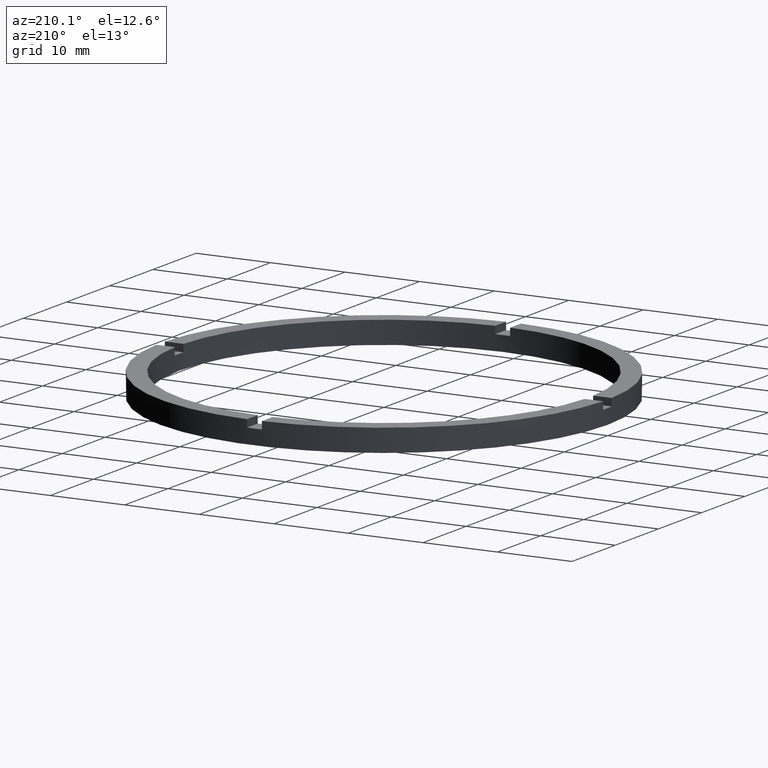
[diagram: clean part render]
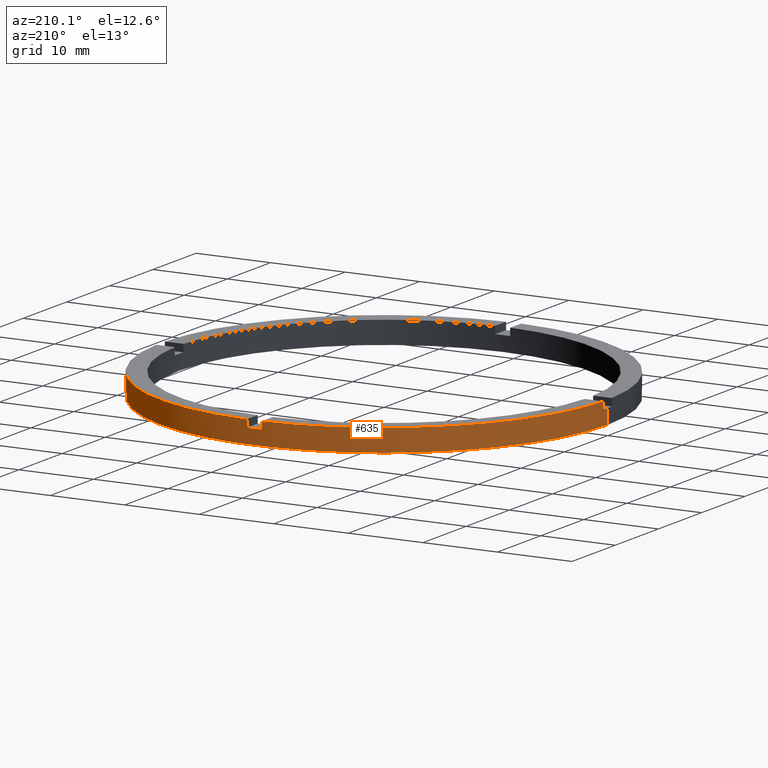
[diagram: same view with one face highlighted and labeled with its STEP entity id]
A machine part, auxiliary view. The second image highlights one B-rep face of the part: STEP entity #635.
In plain terms, the highlighted cylindrical surface (partial cylindrical patch) has radius 30 mm, axis along (-0, -0, -1).
Its self-contained STEP definition (entity closure, byte-faithful):
#4 = DIRECTION ( 'NONE',  ( 0.000000000000000000, 0.000000000000000000, 1.000000000000000000 ) ) ;
#5 = DIRECTION ( 'NONE',  ( 0.000000000000000000, 0.000000000000000000, 1.000000000000000000 ) ) ;
#11 = EDGE_CURVE ( 'NONE', #430, #458, #204, .T. ) ;
#16 = DIRECTION ( 'NONE',  ( -0.000000000000000000, -0.000000000000000000, -1.000000000000000000 ) ) ;
#20 = EDGE_CURVE ( 'NONE', #464, #458, #719, .T. ) ;
#21 = CARTESIAN_POINT ( 'NONE',  ( -1.000000000000027089, 29.98332870112989568, 2.000000000000000000 ) ) ;
#42 = VECTOR ( 'NONE', #16, 1000.000000000000000 ) ;
#47 = DIRECTION ( 'NONE',  ( 1.000000000000000000, 0.000000000000000000, 0.000000000000000000 ) ) ;
#65 = DIRECTION ( 'NONE',  ( 0.000000000000000000, 0.000000000000000000, 1.000000000000000000 ) ) ;
#67 = DIRECTION ( 'NONE',  ( -0.000000000000000000, -0.000000000000000000, -1.000000000000000000 ) ) ;
#74 = CARTESIAN_POINT ( 'NONE',  ( 30.00000000000000000, 3.673940397442059178E-15, 3.000000000000000000 ) ) ;
#78 = LINE ( 'NONE', #294, #586 ) ;
#105 = CARTESIAN_POINT ( 'NONE',  ( -30.00000000000000000, 0.000000000000000000, 3.000000000000000000 ) ) ;
#109 = EDGE_CURVE ( 'NONE', #257, #701, #548, .T. ) ;
#111 = CARTESIAN_POINT ( 'NONE',  ( 30.00000000000000000, 3.673940397442059178E-15, 0.000000000000000000 ) ) ;
#113 = VERTEX_POINT ( 'NONE', #201 ) ;
#117 = DIRECTION ( 'NONE',  ( -0.000000000000000000, -0.000000000000000000, -1.000000000000000000 ) ) ;
#120 = ORIENTED_EDGE ( 'NONE', *, *, #290, .T. ) ;
#121 = ORIENTED_EDGE ( 'NONE', *, *, #647, .T. ) ;
#123 = DIRECTION ( 'NONE',  ( 1.000000000000000000, 0.000000000000000000, 0.000000000000000000 ) ) ;
#129 = DIRECTION ( 'NONE',  ( -0.000000000000000000, -0.000000000000000000, -1.000000000000000000 ) ) ;
#134 = CARTESIAN_POINT ( 'NONE',  ( 30.00000000000000000, 3.673940397442059178E-15, 2.000000000000000000 ) ) ;
#151 = CARTESIAN_POINT ( 'NONE',  ( 0.000000000000000000, 0.000000000000000000, 2.000000000000000000 ) ) ;
#171 = DIRECTION ( 'NONE',  ( 0.000000000000000000, -0.000000000000000000, 1.000000000000000000 ) ) ;
#172 = CARTESIAN_POINT ( 'NONE',  ( -29.98332870112989923, 0.9999999999999718003, 3.000000000000000000 ) ) ;
#178 = VERTEX_POINT ( 'NONE', #437 ) ;
#180 = DIRECTION ( 'NONE',  ( 1.000000000000000000, 0.000000000000000000, 0.000000000000000000 ) ) ;
#189 = CIRCLE ( 'NONE', #414, 30.00000000000000000 ) ;
#201 = CARTESIAN_POINT ( 'NONE',  ( -30.00000000000000000, 0.000000000000000000, 2.000000000000000000 ) ) ;
#204 = LINE ( 'NONE', #577, #467 ) ;
#236 = CARTESIAN_POINT ( 'NONE',  ( 0.000000000000000000, 0.000000000000000000, 3.000000000000000000 ) ) ;
#257 = VERTEX_POINT ( 'NONE', #468 ) ;
#261 = ORIENTED_EDGE ( 'NONE', *, *, #481, .F. ) ;
#262 = DIRECTION ( 'NONE',  ( 1.000000000000000000, 0.000000000000000000, 0.000000000000000000 ) ) ;
#264 = CARTESIAN_POINT ( 'NONE',  ( -1.000000000000027089, 29.98332870112989568, 3.000000000000000000 ) ) ;
#272 = EDGE_CURVE ( 'NONE', #178, #113, #301, .T. ) ;
#273 = CARTESIAN_POINT ( 'NONE',  ( -30.00000000000000000, 0.000000000000000000, 0.000000000000000000 ) ) ;
#274 = CARTESIAN_POINT ( 'NONE',  ( 29.98332870112990278, 0.9999999999998439026, 3.000000000000000000 ) ) ;
#282 = VECTOR ( 'NONE', #65, 1000.000000000000000 ) ;
#283 = DIRECTION ( 'NONE',  ( 1.000000000000000000, 0.000000000000000000, 0.000000000000000000 ) ) ;
#290 = EDGE_CURVE ( 'NONE', #464, #509, #557, .T. ) ;
#294 = CARTESIAN_POINT ( 'NONE',  ( -29.98332870112989923, 0.9999999999999718003, 3.000000000000000000 ) ) ;
#301 = CIRCLE ( 'NONE', #588, 30.00000000000000000 ) ;
#302 = AXIS2_PLACEMENT_3D ( 'NONE', #782, #4, #47 ) ;
#303 = EDGE_CURVE ( 'NONE', #761, #504, #189, .T. ) ;
#308 = DIRECTION ( 'NONE',  ( 0.000000000000000000, -0.000000000000000000, 1.000000000000000000 ) ) ;
#336 = VECTOR ( 'NONE', #129, 1000.000000000000000 ) ;
#342 = EDGE_CURVE ( 'NONE', #257, #431, #378, .T. ) ;
#347 = DIRECTION ( 'NONE',  ( -0.000000000000000000, -0.000000000000000000, -1.000000000000000000 ) ) ;
#353 = DIRECTION ( 'NONE',  ( 0.000000000000000000, 0.000000000000000000, 1.000000000000000000 ) ) ;
#365 = CARTESIAN_POINT ( 'NONE',  ( 0.000000000000000000, 0.000000000000000000, 2.000000000000000000 ) ) ;
#378 = CIRCLE ( 'NONE', #639, 30.00000000000000000 ) ;
#385 = CARTESIAN_POINT ( 'NONE',  ( 0.9999999999999729106, 29.98332870112989923, 3.000000000000000000 ) ) ;
#414 = AXIS2_PLACEMENT_3D ( 'NONE', #659, #5, #652 ) ;
#430 = VERTEX_POINT ( 'NONE', #274 ) ;
#431 = VERTEX_POINT ( 'NONE', #21 ) ;
#432 = ORIENTED_EDGE ( 'NONE', *, *, #733, .T. ) ;
#437 = CARTESIAN_POINT ( 'NONE',  ( -29.98332870112989923, 0.9999999999999718003, 2.000000000000000000 ) ) ;
#450 = EDGE_CURVE ( 'NONE', #761, #431, #551, .T. ) ;
#454 = ORIENTED_EDGE ( 'NONE', *, *, #272, .F. ) ;
#458 = VERTEX_POINT ( 'NONE', #740 ) ;
#464 = VERTEX_POINT ( 'NONE', #134 ) ;
#467 = VECTOR ( 'NONE', #117, 1000.000000000000000 ) ;
#468 = CARTESIAN_POINT ( 'NONE',  ( 0.9999999999999729106, 29.98332870112989923, 2.000000000000000000 ) ) ;
#481 = EDGE_CURVE ( 'NONE', #430, #701, #764, .T. ) ;
#489 = CARTESIAN_POINT ( 'NONE',  ( 0.000000000000000000, 0.000000000000000000, 2.000000000000000000 ) ) ;
#504 = VERTEX_POINT ( 'NONE', #172 ) ;
#509 = VERTEX_POINT ( 'NONE', #111 ) ;
#513 = ORIENTED_EDGE ( 'NONE', *, *, #450, .T. ) ;
#517 = ORIENTED_EDGE ( 'NONE', *, *, #11, .T. ) ;
#547 = AXIS2_PLACEMENT_3D ( 'NONE', #751, #567, #283 ) ;
#548 = LINE ( 'NONE', #555, #282 ) ;
#550 = VECTOR ( 'NONE', #67, 1000.000000000000000 ) ;
#551 = LINE ( 'NONE', #264, #550 ) ;
#555 = CARTESIAN_POINT ( 'NONE',  ( 0.9999999999999729106, 29.98332870112989923, 3.000000000000000000 ) ) ;
#557 = LINE ( 'NONE', #74, #42 ) ;
#566 = EDGE_CURVE ( 'NONE', #113, #664, #590, .T. ) ;
#567 = DIRECTION ( 'NONE',  ( 0.000000000000000000, 0.000000000000000000, 1.000000000000000000 ) ) ;
#572 = AXIS2_PLACEMENT_3D ( 'NONE', #151, #171, #180 ) ;
#573 = CIRCLE ( 'NONE', #547, 30.00000000000000000 ) ;
#577 = CARTESIAN_POINT ( 'NONE',  ( 29.98332870112990278, 0.9999999999998439026, 3.000000000000000000 ) ) ;
#586 = VECTOR ( 'NONE', #353, 1000.000000000000000 ) ;
#588 = AXIS2_PLACEMENT_3D ( 'NONE', #365, #742, #262 ) ;
#590 = LINE ( 'NONE', #105, #336 ) ;
#595 = CYLINDRICAL_SURFACE ( 'NONE', #730, 30.00000000000000000 ) ;
#599 = FACE_OUTER_BOUND ( 'NONE', #707, .T. ) ;
#635 = ADVANCED_FACE ( 'NONE', ( #599 ), #595, .T. ) ;
#639 = AXIS2_PLACEMENT_3D ( 'NONE', #489, #308, #123 ) ;
#645 = ORIENTED_EDGE ( 'NONE', *, *, #303, .F. ) ;
#647 = EDGE_CURVE ( 'NONE', #178, #504, #78, .T. ) ;
#652 = DIRECTION ( 'NONE',  ( 1.000000000000000000, 0.000000000000000000, 0.000000000000000000 ) ) ;
#659 = CARTESIAN_POINT ( 'NONE',  ( 0.000000000000000000, 0.000000000000000000, 3.000000000000000000 ) ) ;
#664 = VERTEX_POINT ( 'NONE', #273 ) ;
#665 = ORIENTED_EDGE ( 'NONE', *, *, #342, .F. ) ;
#688 = ORIENTED_EDGE ( 'NONE', *, *, #109, .T. ) ;
#698 = ORIENTED_EDGE ( 'NONE', *, *, #566, .F. ) ;
#701 = VERTEX_POINT ( 'NONE', #385 ) ;
#704 = CARTESIAN_POINT ( 'NONE',  ( -1.000000000000027089, 29.98332870112989568, 3.000000000000000000 ) ) ;
#707 = EDGE_LOOP ( 'NONE', ( #770, #120, #432, #698, #454, #121, #645, #513, #665, #688, #261, #517 ) ) ;
#714 = DIRECTION ( 'NONE',  ( -1.000000000000000000, 0.000000000000000000, 0.000000000000000000 ) ) ;
#719 = CIRCLE ( 'NONE', #572, 30.00000000000000000 ) ;
#730 = AXIS2_PLACEMENT_3D ( 'NONE', #236, #347, #714 ) ;
#733 = EDGE_CURVE ( 'NONE', #509, #664, #573, .T. ) ;
#740 = CARTESIAN_POINT ( 'NONE',  ( 29.98332870112990278, 0.9999999999998439026, 2.000000000000000000 ) ) ;
#742 = DIRECTION ( 'NONE',  ( 0.000000000000000000, 0.000000000000000000, 1.000000000000000000 ) ) ;
#751 = CARTESIAN_POINT ( 'NONE',  ( 0.000000000000000000, 0.000000000000000000, 0.000000000000000000 ) ) ;
#761 = VERTEX_POINT ( 'NONE', #704 ) ;
#764 = CIRCLE ( 'NONE', #302, 30.00000000000000000 ) ;
#770 = ORIENTED_EDGE ( 'NONE', *, *, #20, .F. ) ;
#782 = CARTESIAN_POINT ( 'NONE',  ( 0.000000000000000000, 0.000000000000000000, 3.000000000000000000 ) ) ;